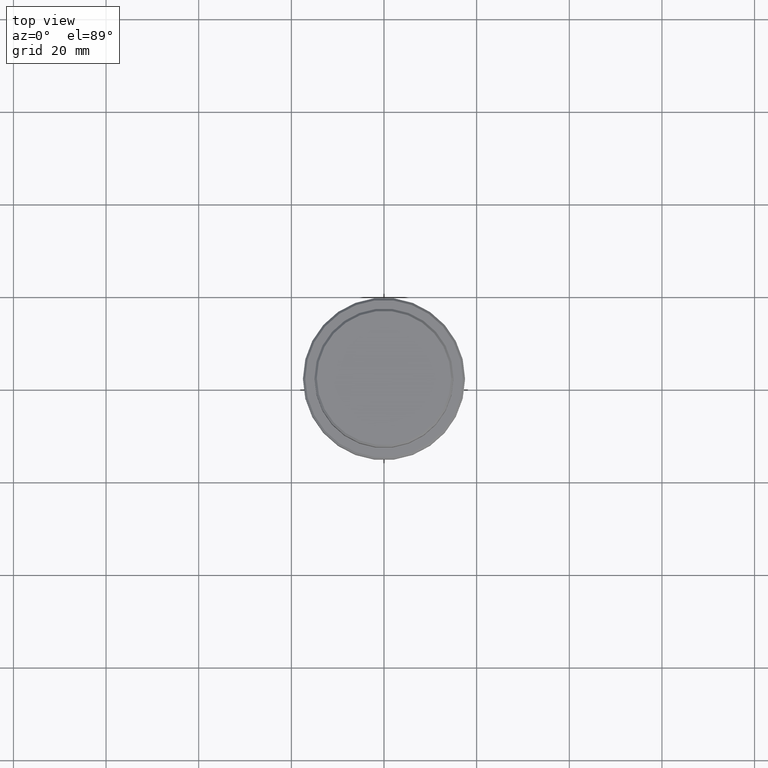
[diagram: clean part render]
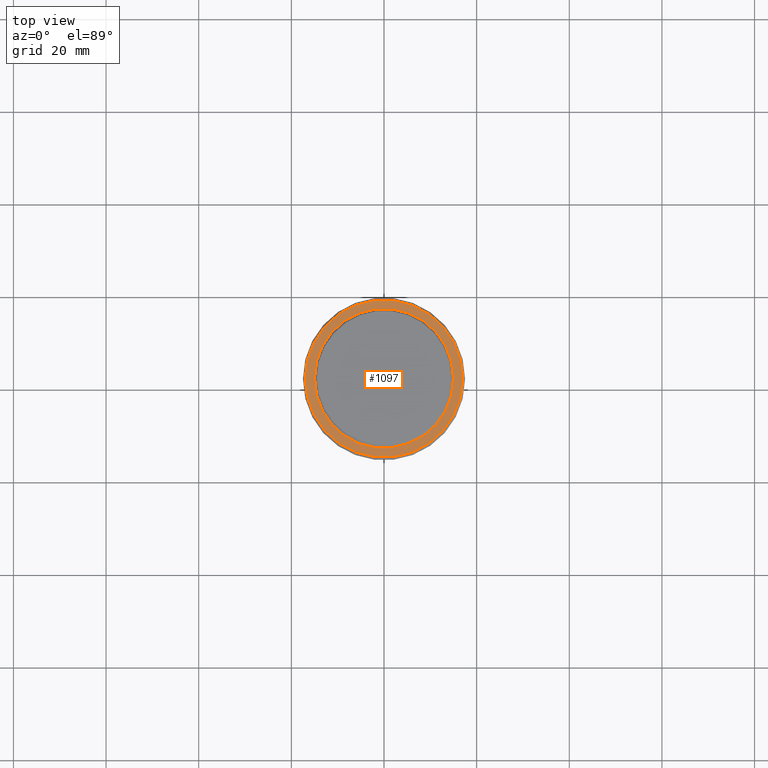
[diagram: same view with one face highlighted and labeled with its STEP entity id]
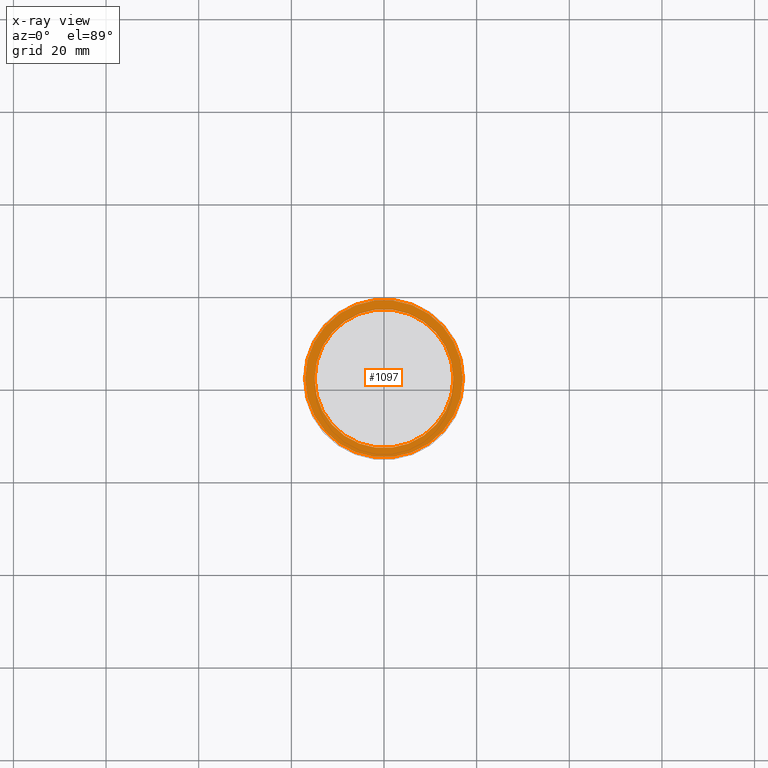
[diagram: x-ray of the same camera — body ghosted, the highlighted face saturated]
A machine part, top view. The second image highlights one B-rep face of the part: STEP entity #1097.
The next image is the same camera in x-ray: the body ghosted, the highlighted face saturated — about 0% of this face is hidden behind the body in this view.
In plain terms, the highlighted planar face has unit normal (0, -0, 1).
Its self-contained STEP definition (entity closure, byte-faithful):
#18 = ORIENTED_EDGE ( 'NONE', *, *, #929, .T. ) ;
#23 = CARTESIAN_POINT ( 'NONE',  ( 0.000000000000000000, 0.000000000000000000, -9.000000000000000000 ) ) ;
#130 = DIRECTION ( 'NONE',  ( 0.000000000000000000, 0.000000000000000000, -1.000000000000000000 ) ) ;
#168 = PLANE ( 'NONE',  #730 ) ;
#236 = ORIENTED_EDGE ( 'NONE', *, *, #809, .T. ) ;
#240 = AXIS2_PLACEMENT_3D ( 'NONE', #1160, #1049, #1031 ) ;
#246 = DIRECTION ( 'NONE',  ( 0.000000000000000000, 0.000000000000000000, -1.000000000000000000 ) ) ;
#248 = VERTEX_POINT ( 'NONE', #533 ) ;
#250 = EDGE_LOOP ( 'NONE', ( #236, #867 ) ) ;
#278 = DIRECTION ( 'NONE',  ( 1.000000000000000000, 0.000000000000000000, 0.000000000000000000 ) ) ;
#308 = VERTEX_POINT ( 'NONE', #1085 ) ;
#319 = ORIENTED_EDGE ( 'NONE', *, *, #489, .T. ) ;
#359 = CIRCLE ( 'NONE', #240, 17.00000000000000000 ) ;
#377 = DIRECTION ( 'NONE',  ( 1.000000000000000000, 0.000000000000000000, 0.000000000000000000 ) ) ;
#447 = AXIS2_PLACEMENT_3D ( 'NONE', #488, #802, #469 ) ;
#469 = DIRECTION ( 'NONE',  ( 1.000000000000000000, 0.000000000000000000, 0.000000000000000000 ) ) ;
#488 = CARTESIAN_POINT ( 'NONE',  ( 0.000000000000000000, 0.000000000000000000, -9.000000000000000000 ) ) ;
#489 = EDGE_CURVE ( 'NONE', #559, #248, #851, .T. ) ;
#503 = AXIS2_PLACEMENT_3D ( 'NONE', #1026, #130, #377 ) ;
#533 = CARTESIAN_POINT ( 'NONE',  ( -14.99999999999999289, 1.836970198721028800E-15, -9.000000000000000000 ) ) ;
#559 = VERTEX_POINT ( 'NONE', #1055 ) ;
#578 = EDGE_LOOP ( 'NONE', ( #319, #18 ) ) ;
#595 = VERTEX_POINT ( 'NONE', #841 ) ;
#629 = FACE_BOUND ( 'NONE', #578, .T. ) ;
#635 = DIRECTION ( 'NONE',  ( 0.000000000000000000, -0.000000000000000000, 1.000000000000000000 ) ) ;
#730 = AXIS2_PLACEMENT_3D ( 'NONE', #1054, #635, #278 ) ;
#802 = DIRECTION ( 'NONE',  ( -0.000000000000000000, -0.000000000000000000, 1.000000000000000000 ) ) ;
#809 = EDGE_CURVE ( 'NONE', #308, #595, #1199, .T. ) ;
#815 = AXIS2_PLACEMENT_3D ( 'NONE', #23, #246, #1119 ) ;
#841 = CARTESIAN_POINT ( 'NONE',  ( 17.00000000000000000, 2.112515728529184067E-15, -9.000000000000000000 ) ) ;
#851 = CIRCLE ( 'NONE', #815, 14.99999999999999289 ) ;
#867 = ORIENTED_EDGE ( 'NONE', *, *, #983, .T. ) ;
#929 = EDGE_CURVE ( 'NONE', #248, #559, #1132, .T. ) ;
#983 = EDGE_CURVE ( 'NONE', #595, #308, #359, .T. ) ;
#1026 = CARTESIAN_POINT ( 'NONE',  ( 0.000000000000000000, 0.000000000000000000, -9.000000000000000000 ) ) ;
#1031 = DIRECTION ( 'NONE',  ( 1.000000000000000000, 0.000000000000000000, 0.000000000000000000 ) ) ;
#1049 = DIRECTION ( 'NONE',  ( -0.000000000000000000, -0.000000000000000000, 1.000000000000000000 ) ) ;
#1054 = CARTESIAN_POINT ( 'NONE',  ( 0.000000000000000000, 14.49999999999999467, -9.000000000000000000 ) ) ;
#1055 = CARTESIAN_POINT ( 'NONE',  ( 14.99999999999999289, 0.000000000000000000, -9.000000000000000000 ) ) ;
#1085 = CARTESIAN_POINT ( 'NONE',  ( -17.00000000000000000, 0.000000000000000000, -9.000000000000000000 ) ) ;
#1097 = ADVANCED_FACE ( 'NONE', ( #1251, #629 ), #168, .T. ) ;
#1119 = DIRECTION ( 'NONE',  ( 1.000000000000000000, 0.000000000000000000, 0.000000000000000000 ) ) ;
#1132 = CIRCLE ( 'NONE', #503, 14.99999999999999289 ) ;
#1160 = CARTESIAN_POINT ( 'NONE',  ( 0.000000000000000000, 0.000000000000000000, -9.000000000000000000 ) ) ;
#1199 = CIRCLE ( 'NONE', #447, 17.00000000000000000 ) ;
#1251 = FACE_OUTER_BOUND ( 'NONE', #250, .T. ) ;